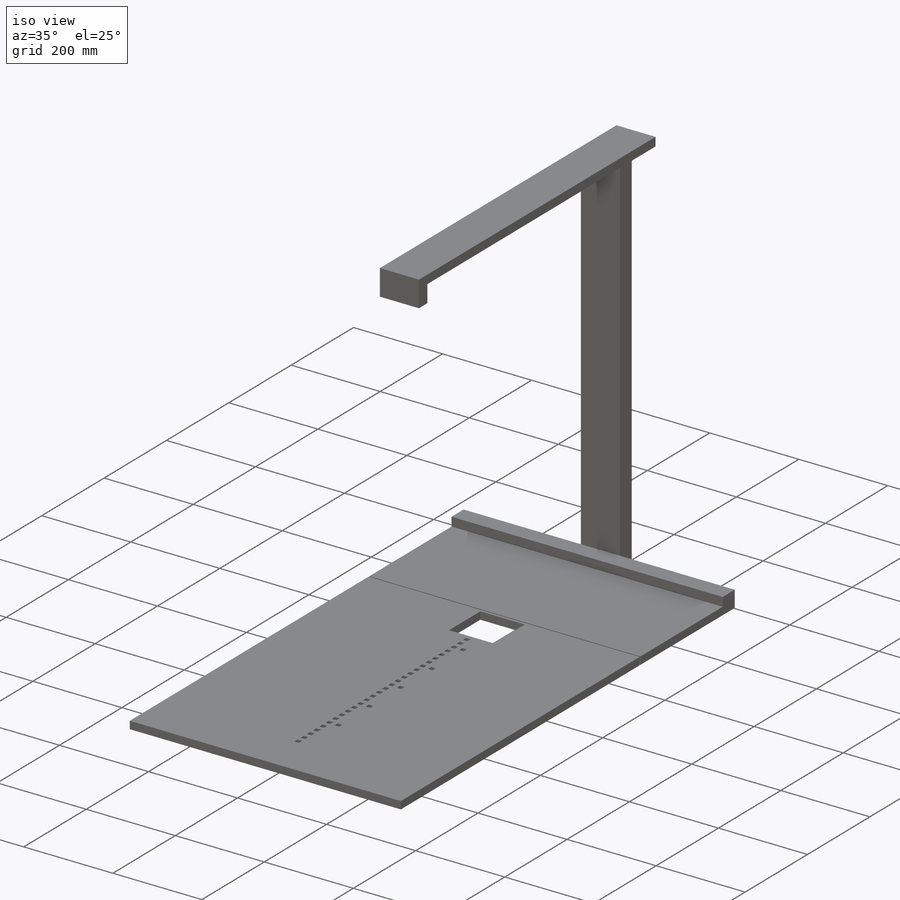
[diagram: iso view]
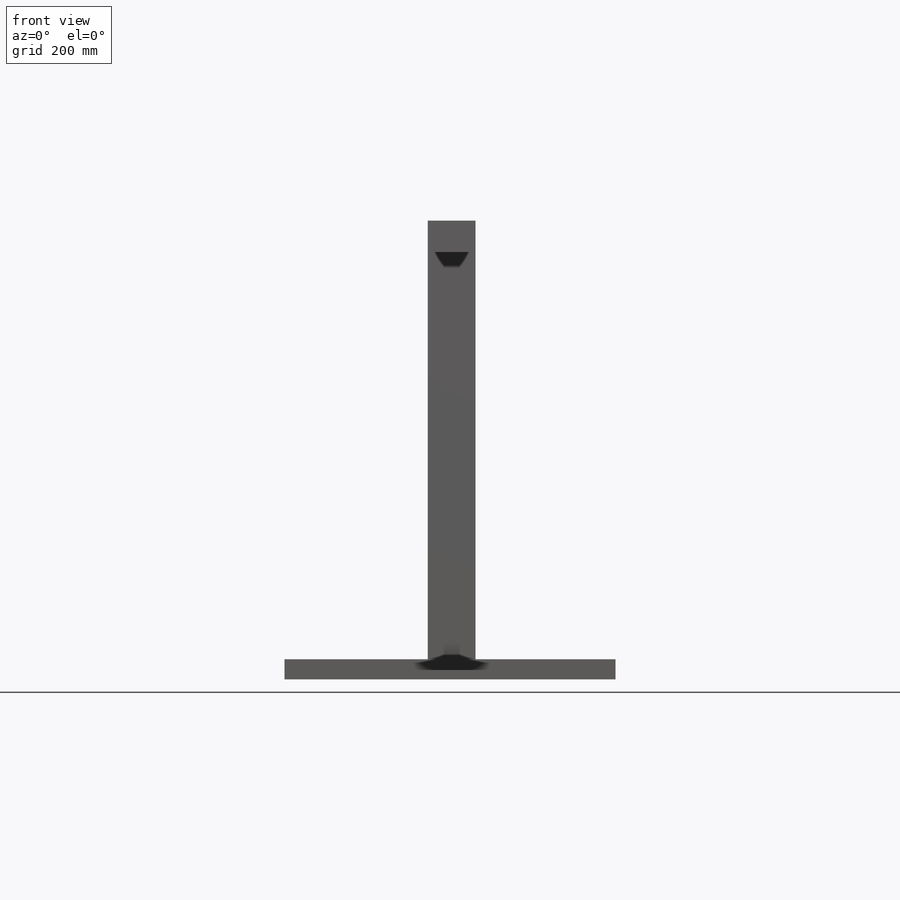
[diagram: front view]
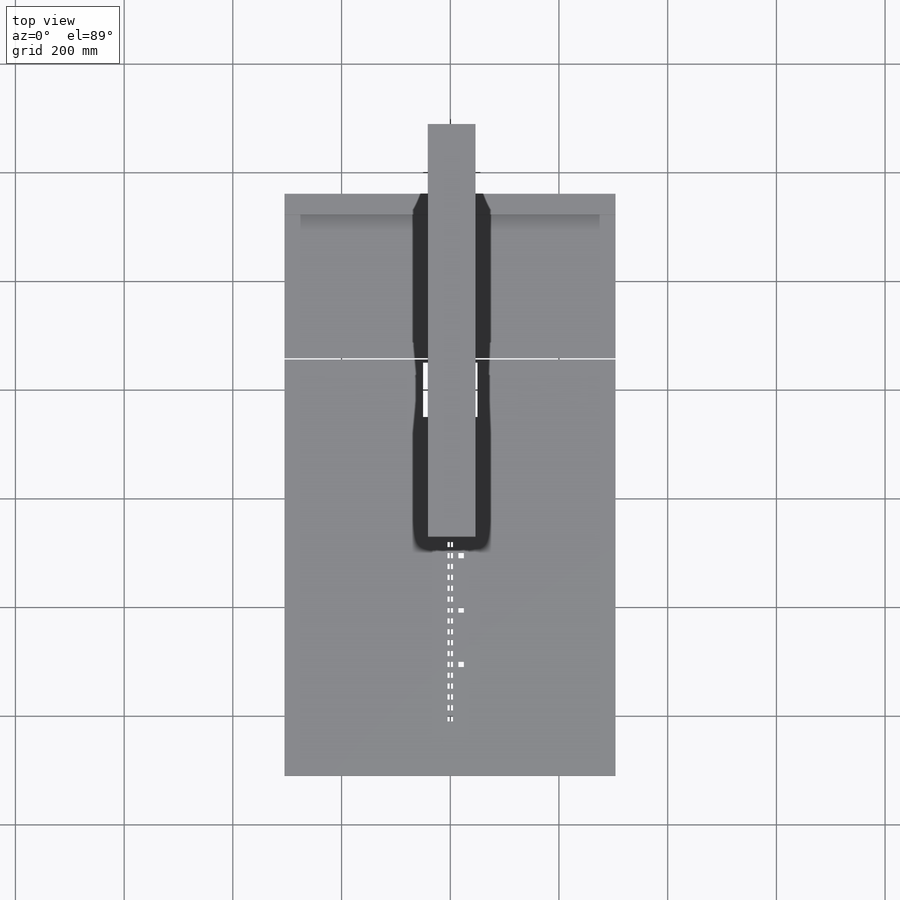
[diagram: top view]
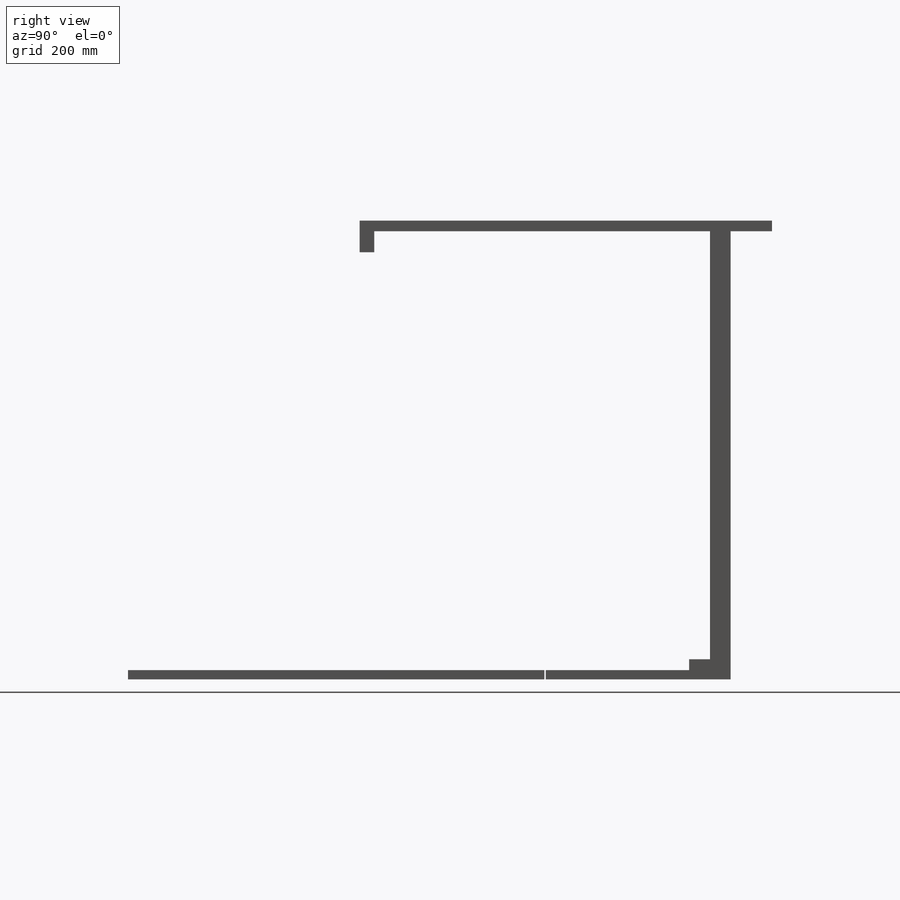
[diagram: right view]
SOLIDWORKS PART (.sldprt)
format: sldprt  version: not decoded by parser v0  size: 396,288 bytes
history: native  units: mm
features: sketch x4, extrude x4, material x1 (+11 scaffold rows collapsed)
feature tree (20):
  scaffold x11  (default folders/planes/origin — collapsed)
  material  "Material <not specified>"
  sketch  "Sketch1"  dims[c1.D1=609.0mm c1.D2=766.0mm c1.D3=100.0mm c1.D4=100.0mm c1.D5=50.0mm c1.D6=50.0mm c1.D7=5.73mm c1.D8=255.0mm c1.D9=10.0mm c1.D10=10.0mm c1.D11=60.0mm c1.D12=5.0mm c1.D14=80.0mm c1.D15=100.0mm c2.D14=80.0mm c2.D15=10.0mm c2.D16=100.0mm c2.D17=10.0mm c2.D19=100.0mm c2.D20=10.0mm c2.D22=100.0mm c2.D23=10.0mm c2.D24=10.0mm c3.D23=10.0mm c3.D25=100.0mm c3.D26=10.0mm c3.D28=100.0mm c3.D29=10.0mm c3.D13=28.0 c3.D15=2.0 c3.D18=2.0 c3.D21=2.0 c3.D24=2.0 c3.D27=2.0]
  extrude  "Boss-Extrude1"  Depth=17mm
  sketch  "Sketch2"  dims[D1=2.54mm D2=302.26mm D3=609.0mm D4=766.0mm]
  extrude  "Boss-Extrude2"  [1 undecoded]
  sketch  "Sketch3"  dims[D1=38.5mm]
  extrude  "Boss-Extrude3"  Depth=20mm
  sketch  "Sketch4"  dims[c1.D1=37.9mm c1.D2=87.8mm c1.D3=37.9mm c2.D3=90.0deg c3.D3=263.525mm]
  extrude  "Boss-Extrude4"  Depth=824.4mm
decode coverage: 7 of 8 modeling features carry decoded parameters
note: 1 parameter value undecoded
note: suppression state not decoded; provenance and decode notes live in map.json
